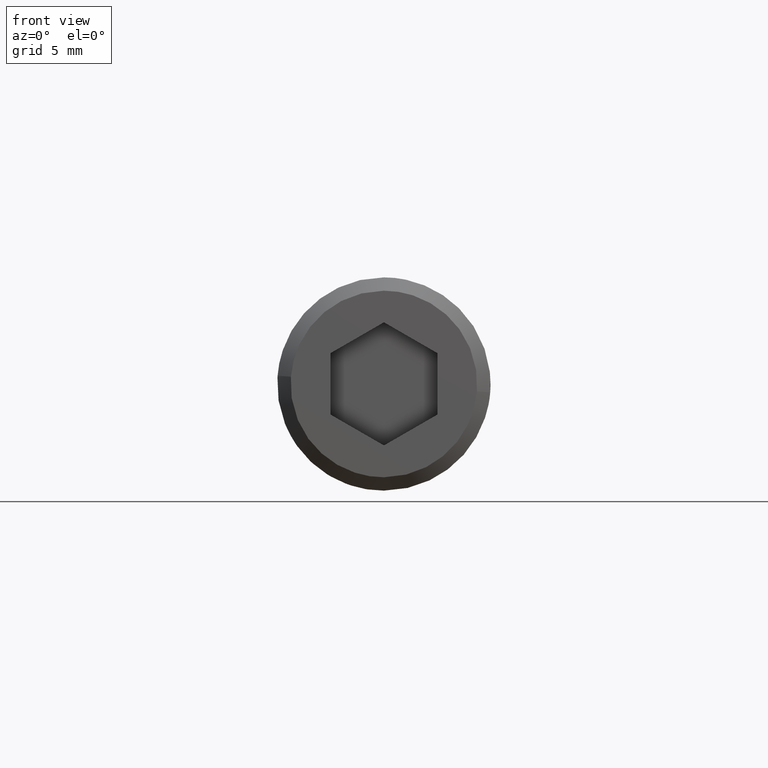
[diagram: clean part render]
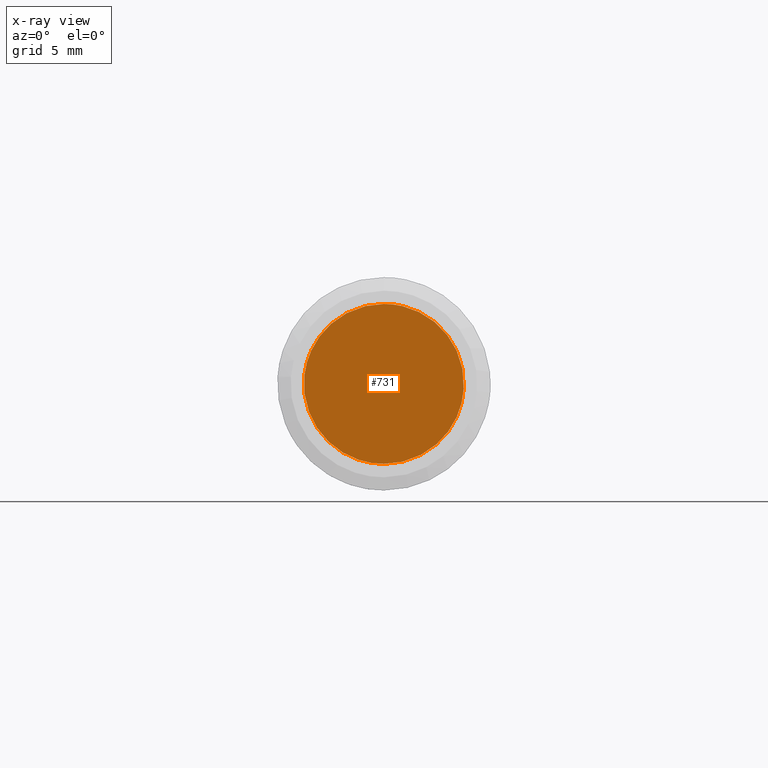
[diagram: x-ray — body ghosted, one internal face saturated and labeled with its STEP entity id]
A machine part, front view, then the same camera in x-ray: the body is ghosted and one INTERNAL B-rep face — a face not visible from any outside direction — is saturated and labeled: STEP entity #731.
In plain terms, the highlighted face is a freeform B-spline surface patch.
Its self-contained STEP definition (entity closure, byte-faithful):
#70=CARTESIAN_POINT('',(-5.958058109099765,-8.999999999999925,0.708197407878351));
#71=VERTEX_POINT('',#70);
#72=CARTESIAN_POINT('',(0.0,-9.0,-6.0));
#73=VERTEX_POINT('',#72);
#74=CARTESIAN_POINT('',(-5.958058109099765,-8.999999999999925,0.708197407878351));
#75=CARTESIAN_POINT('',(-6.0,-9.000000000000002,0.355340675593348));
#76=CARTESIAN_POINT('',(-6.0,-9.0,0.0));
#77=CARTESIAN_POINT('',(-6.0,-9.000000000000002,-6.0));
#78=CARTESIAN_POINT('',(0.0,-9.0,-6.0));
#86=(BOUNDED_CURVE()B_SPLINE_CURVE(2,(#74,#75,#76,#77,#78),.UNSPECIFIED.,.F.,.U.)B_SPLINE_CURVE_WITH_KNOTS((3,2,3),(0.229562700441398,0.250000000000000,0.500000000000000),.UNSPECIFIED.)CURVE()GEOMETRIC_REPRESENTATION_ITEM()RATIONAL_B_SPLINE_CURVE((0.956027198972133,0.976056214193705,1.0,0.707106781186548,1.0))REPRESENTATION_ITEM(''));
#87=EDGE_CURVE('',#71,#73,#86,.T.);
#89=CARTESIAN_POINT('',(5.988809371080108,-9.000000000000089,-0.366281745071519));
#90=VERTEX_POINT('',#89);
#91=CARTESIAN_POINT('',(0.0,-9.0,-6.0));
#92=CARTESIAN_POINT('',(5.644245364154791,-9.0,-6.0));
#93=CARTESIAN_POINT('',(5.988809371080109,-9.000000000000089,-0.366281745071519));
#101=(BOUNDED_CURVE()B_SPLINE_CURVE(2,(#91,#92,#93),.UNSPECIFIED.,.F.,.U.)B_SPLINE_CURVE_WITH_KNOTS((3,3),(0.500000000000000,0.739333235725104),.UNSPECIFIED.)CURVE()GEOMETRIC_REPRESENTATION_ITEM()RATIONAL_B_SPLINE_CURVE((1.0,0.719603672877742,0.976072627800323))REPRESENTATION_ITEM(''));
#102=EDGE_CURVE('',#73,#90,#101,.T.);
#169=CARTESIAN_POINT('',(0.0,-9.0,6.0));
#170=VERTEX_POINT('',#169);
#171=CARTESIAN_POINT('',(0.0,-9.0,6.0));
#172=CARTESIAN_POINT('',(-5.329054361555202,-8.999999999999998,6.0));
#173=CARTESIAN_POINT('',(-5.958058109099765,-8.999999999999925,0.708197407878351));
#181=(BOUNDED_CURVE()B_SPLINE_CURVE(2,(#171,#172,#173),.UNSPECIFIED.,.F.,.U.)B_SPLINE_CURVE_WITH_KNOTS((3,3),(0.0,0.229562700441398),.UNSPECIFIED.)CURVE()GEOMETRIC_REPRESENTATION_ITEM()RATIONAL_B_SPLINE_CURVE((1.0,0.731050566992842,0.956027198972133))REPRESENTATION_ITEM(''));
#182=EDGE_CURVE('',#170,#71,#181,.T.);
#216=CARTESIAN_POINT('',(5.988809371080109,-9.000000000000089,-0.366281745071519));
#217=CARTESIAN_POINT('',(6.0,-9.0,-0.183311820415783));
#218=CARTESIAN_POINT('',(6.0,-9.0,0.0));
#219=CARTESIAN_POINT('',(6.0,-9.000000000000002,6.0));
#220=CARTESIAN_POINT('',(0.0,-9.0,6.0));
#228=(BOUNDED_CURVE()B_SPLINE_CURVE(2,(#216,#217,#218,#219,#220),.UNSPECIFIED.,.F.,.U.)B_SPLINE_CURVE_WITH_KNOTS((3,2,3),(0.739333235725104,0.750000000000000,1.0),.UNSPECIFIED.)CURVE()GEOMETRIC_REPRESENTATION_ITEM()RATIONAL_B_SPLINE_CURVE((0.976072627800323,0.987503108308806,1.0,0.707106781186548,1.0))REPRESENTATION_ITEM(''));
#229=EDGE_CURVE('',#90,#170,#228,.T.);
#720=CARTESIAN_POINT('',(-6.599291187213018,-9.0,6.599399976741672));
#721=CARTESIAN_POINT('',(6.599253958151892,-9.0,6.599399976741672));
#722=CARTESIAN_POINT('',(-6.599291187213018,-9.0,-6.599400298606753));
#723=CARTESIAN_POINT('',(6.599253958151893,-9.0,-6.599400298606753));
#724=B_SPLINE_SURFACE_WITH_KNOTS('',1,1,((#720,#722),(#721,#723)),.UNSPECIFIED.,.F.,.F.,.U.,(2,2),(2,2),(0.0,13.198545145364911),(0.0,13.198800275348431),.UNSPECIFIED.);
#725=ORIENTED_EDGE('',*,*,#229,.F.);
#726=ORIENTED_EDGE('',*,*,#102,.F.);
#727=ORIENTED_EDGE('',*,*,#87,.F.);
#728=ORIENTED_EDGE('',*,*,#182,.F.);
#729=EDGE_LOOP('',(#725,#726,#727,#728));
#730=FACE_OUTER_BOUND('',#729,.T.);
#731=ADVANCED_FACE('',(#730),#724,.T.);